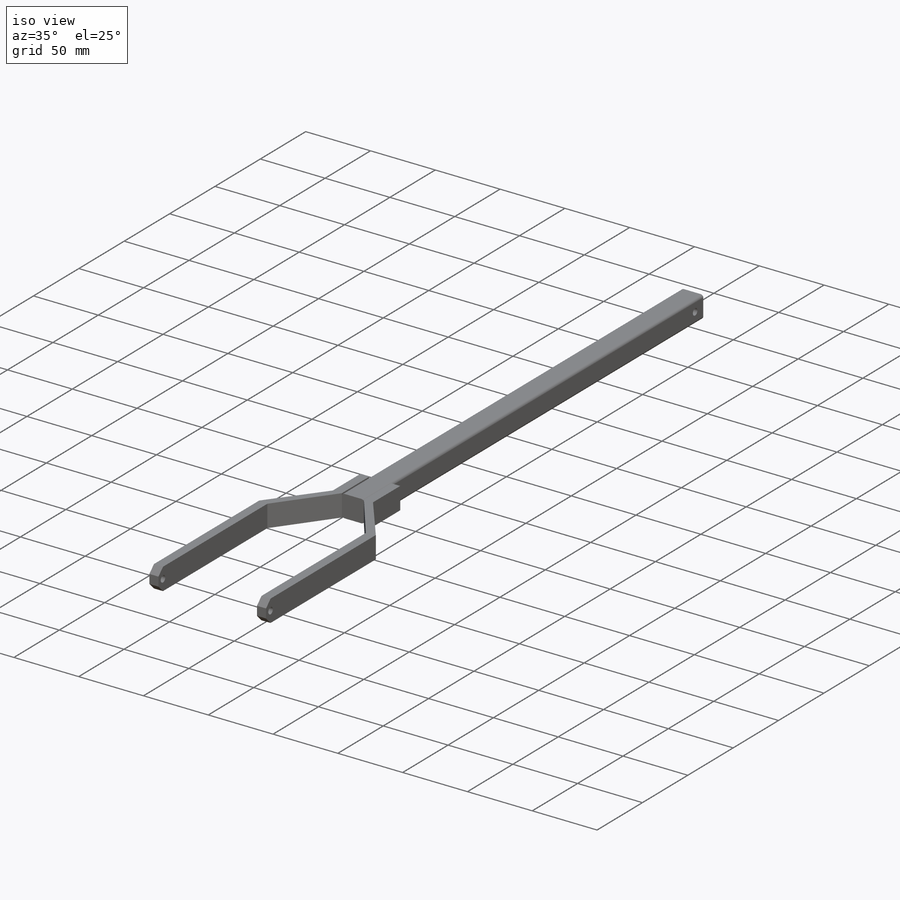
[diagram: iso view]
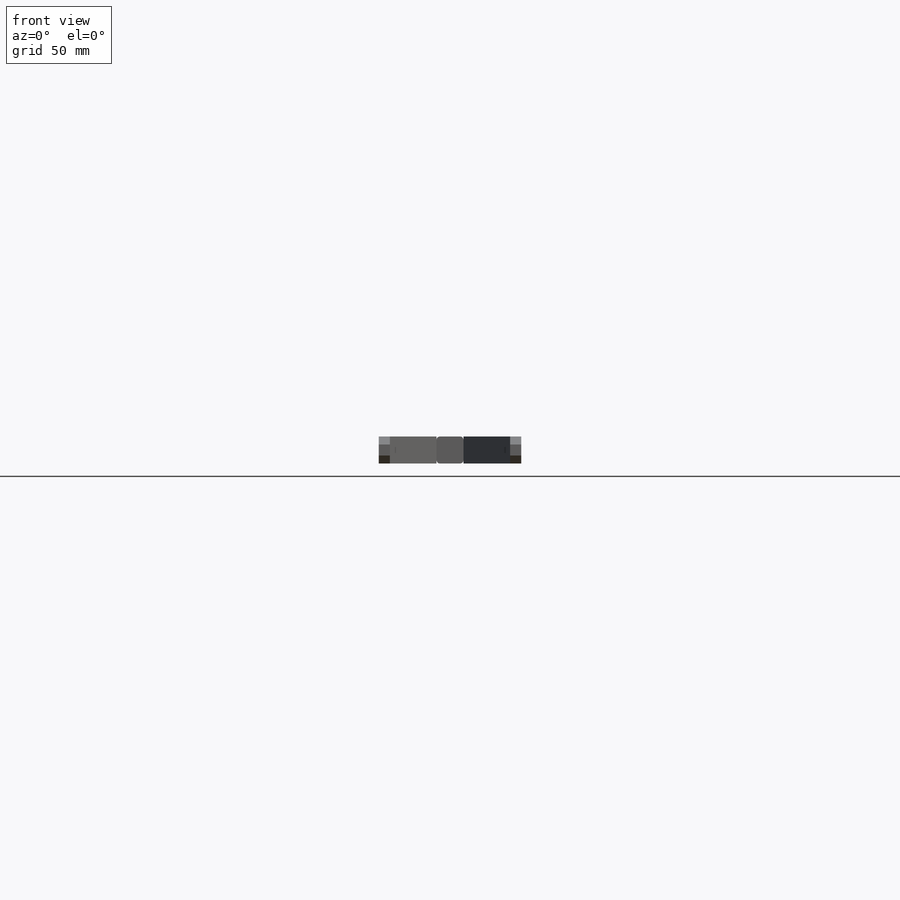
[diagram: front view]
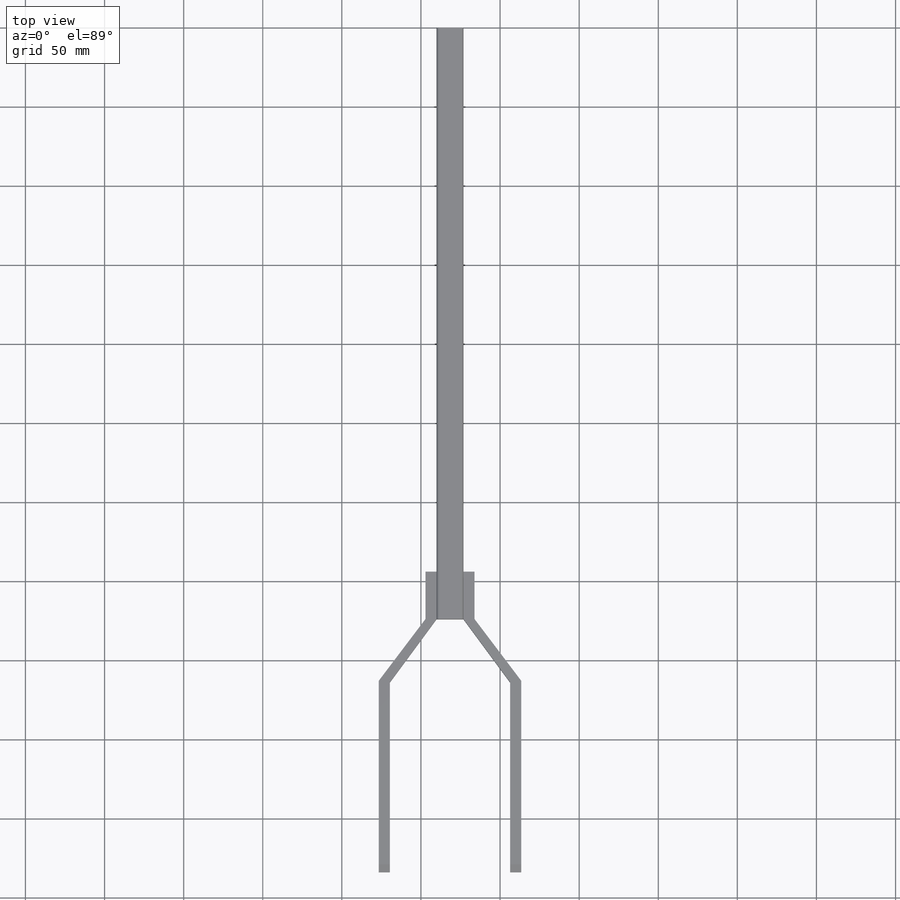
[diagram: top view]
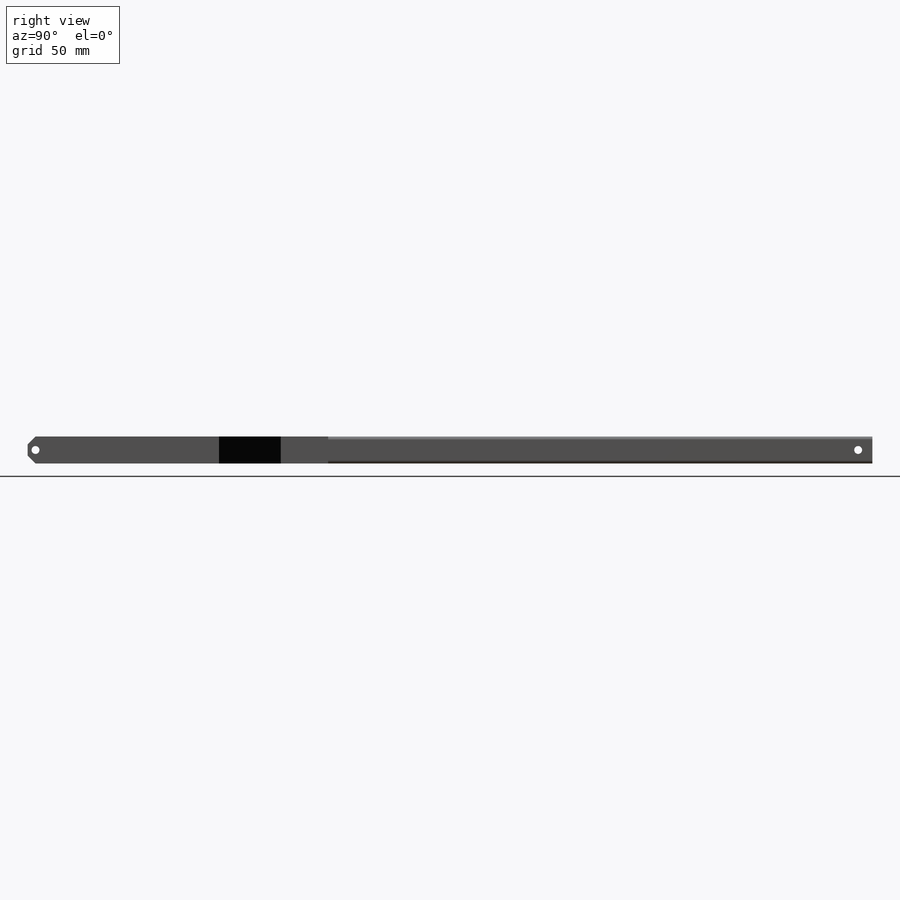
[diagram: right view]
SOLIDWORKS PART (.sldprt)
format: sldprt  version: not decoded by parser v0  size: 223,232 bytes
history: native  units: mm
features: sketch x3, extrude x2, material x1, cut_extrude x1 (+16 scaffold rows collapsed)
feature tree (23):
  scaffold x16  (default folders/planes/origin — collapsed)
  material  "Material <not specified>"
  sketch  "Sketch1"  dims[D3=2.0mm D1=17.0mm D2=17.0mm]
  extrude  "Extrude1"  Depth=374mm
  sketch  "Sketch2"  dims[D1=30.0mm D2=7.0mm D3=30.0mm D4=534.0mm D5=7.0mm D6=29.5mm D7=7.0mm D8=534.0mm D9=7.0mm D10=120.0mm D11=121.0mm D12=121.0mm D13=120.0mm D14=30.0mm D15=30.0mm D16=29.5mm]
  extrude  "Extrude2"  Depth=17mm
  sketch  "Sketch4"  dims[D1=5.0mm D2=5.0mm D3=5.0mm D4=9.0mm D5=5.0mm D6=5.0mm D7=5.0mm D8=520.0mm]
  cut_extrude  "Extrude3"  [1 undecoded]
decode coverage: 5 of 6 modeling features carry decoded parameters
note: 1 parameter value undecoded
note: suppression state not decoded; provenance and decode notes live in map.json
